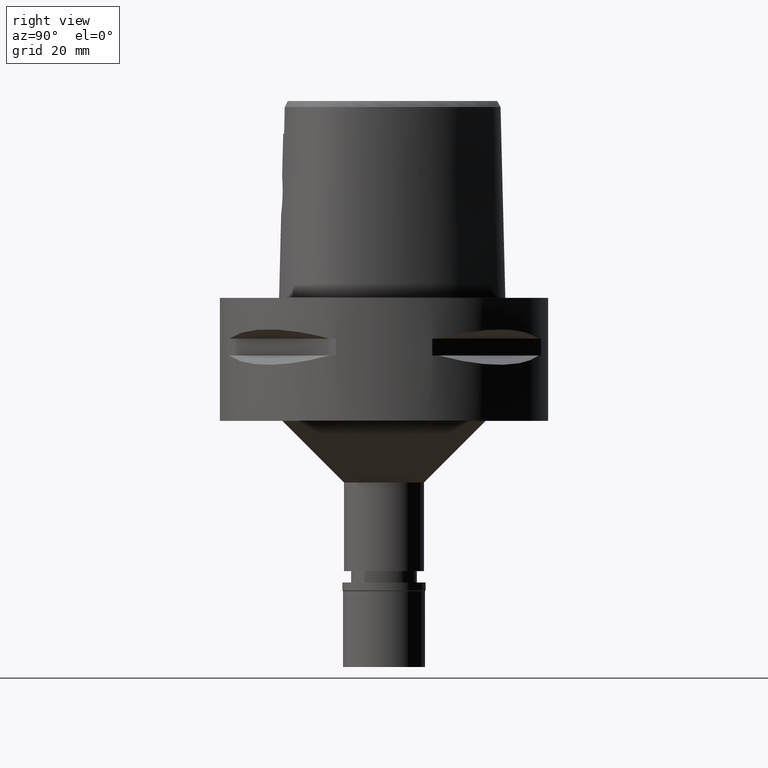
[diagram: clean part render]
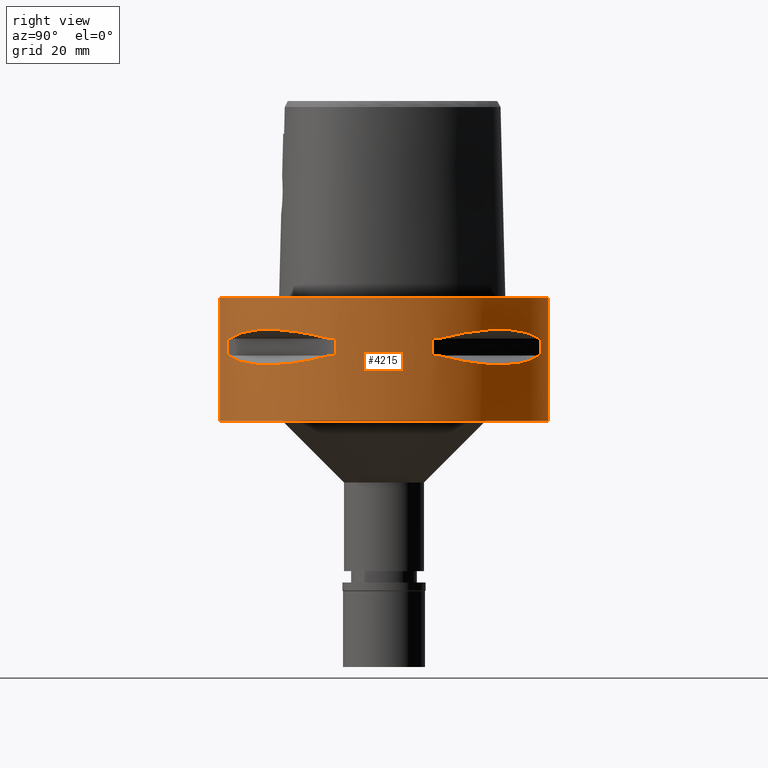
[diagram: same view with one face highlighted and labeled with its STEP entity id]
A machine part, right view. The second image highlights one B-rep face of the part: STEP entity #4215.
In plain terms, the highlighted cylindrical surface (partial cylindrical patch) has radius 40 mm, axis along (0, 0, -1).
Its self-contained STEP definition (entity closure, byte-faithful):
#11 = CARTESIAN_POINT ( 'NONE',  ( 21.40429668490248005, -33.79139713908606524, -15.76966389594713647 ) ) ;
#36 = CARTESIAN_POINT ( 'NONE',  ( 13.23717311056000057, -37.74622163926999718, -14.05000000000000071 ) ) ;
#41 = CARTESIAN_POINT ( 'NONE',  ( 22.02254759438460141, 33.39247868354773630, -15.85920599531294783 ) ) ;
#48 = ORIENTED_EDGE ( 'NONE', *, *, #3011, .T. ) ;
#54 = B_SPLINE_CURVE_WITH_KNOTS ( 'NONE', 3,
 ( #1267, #1575, #4712, #2826, #879, #480, #2061, #3628, #3243, #2851 ),
 .UNSPECIFIED., .F., .F.,
 ( 4, 2, 2, 2, 4 ),
 ( 0.0000000000000000000, 0.2500000000000000000, 0.5000000000000000000, 0.7500000000000000000, 1.000000000000000000 ),
 .UNSPECIFIED. ) ;
#59 = DIRECTION ( 'NONE',  ( 0.0000000000000000000, 0.0000000000000000000, 1.000000000000000000 ) ) ;
#61 = CARTESIAN_POINT ( 'NONE',  ( 23.95303639238279914, -32.16767032370825063, -16.14729882780506287 ) ) ;
#104 = DIRECTION ( 'NONE',  ( 0.0000000000000000000, 0.0000000000000000000, -1.000000000000000000 ) ) ;
#108 = EDGE_CURVE ( 'NONE', #1826, #2446, #1118, .T. ) ;
#152 = VERTEX_POINT ( 'NONE', #4677 ) ;
#172 = EDGE_CURVE ( 'NONE', #3135, #2698, #1670, .T. ) ;
#192 = CARTESIAN_POINT ( 'NONE',  ( 32.30995221950663421, -23.60097336453835837, -16.06165603927566821 ) ) ;
#247 = CIRCLE ( 'NONE', #4455, 39.99999999999999289 ) ;
#291 = ORIENTED_EDGE ( 'NONE', *, *, #108, .T. ) ;
#307 = EDGE_CURVE ( 'NONE', #3135, #3215, #2829, .T. ) ;
#338 = CARTESIAN_POINT ( 'NONE',  ( 27.25214773984120598, 29.31642813391417590, -16.33014064577303515 ) ) ;
#341 = CARTESIAN_POINT ( 'NONE',  ( 30.36058330523851367, 26.20795918968530813, -7.669882118585187314 ) ) ;
#353 = ORIENTED_EDGE ( 'NONE', *, *, #4469, .F. ) ;
#367 = CARTESIAN_POINT ( 'NONE',  ( 30.34851826270024944, 26.21995747455423853, -16.33009976521772799 ) ) ;
#396 = VERTEX_POINT ( 'NONE', #615 ) ;
#424 = VECTOR ( 'NONE', #4402, 1000.000000000000000 ) ;
#433 = VECTOR ( 'NONE', #3194, 1000.000000000000000 ) ;
#436 = AXIS2_PLACEMENT_3D ( 'NONE', #5017, #1521, #1107 ) ;
#448 = CARTESIAN_POINT ( 'NONE',  ( 33.79139713908593023, 21.40429668490282467, -15.76966389594722528 ) ) ;
#467 = CARTESIAN_POINT ( 'NONE',  ( 0.0000000000000000000, -40.00000000000000000, -30.00000000000000000 ) ) ;
#469 = CARTESIAN_POINT ( 'NONE',  ( 11.76033600280999991, 38.23211342708000160, -14.05000000000000071 ) ) ;
#480 = CARTESIAN_POINT ( 'NONE',  ( 30.36058330527161075, -26.20795918965218618, -7.669863843587148011 ) ) ;
#578 = AXIS2_PLACEMENT_3D ( 'NONE', #1173, #2729, #4301 ) ;
#589 = CARTESIAN_POINT ( 'NONE',  ( 33.03835700909839090, -22.55421454657001235, -15.93168855142863904 ) ) ;
#615 = CARTESIAN_POINT ( 'NONE',  ( 13.23717311056000057, -37.74622163926999718, -9.950000000002001244 ) ) ;
#635 = VERTEX_POINT ( 'NONE', #3527 ) ;
#657 = LINE ( 'NONE', #2721, #5036 ) ;
#735 = CARTESIAN_POINT ( 'NONE',  ( 21.56243030661663695, 33.69065616467183588, -15.79309434609252705 ) ) ;
#764 = CARTESIAN_POINT ( 'NONE',  ( 36.35358138589326416, 16.81132763100200123, -14.94059947015123058 ) ) ;
#768 = CARTESIAN_POINT ( 'NONE',  ( 35.41596287858687475, 18.83173199168491507, -8.619939612229350345 ) ) ;
#792 = CARTESIAN_POINT ( 'NONE',  ( 21.62017158009700069, 33.65365962422837498, -15.80156334789098160 ) ) ;
#842 = CARTESIAN_POINT ( 'NONE',  ( 22.55421454656803704, 33.03835700910301654, -15.93168855142971374 ) ) ;
#864 = EDGE_CURVE ( 'NONE', #1499, #2147, #1505, .T. ) ;
#879 = CARTESIAN_POINT ( 'NONE',  ( 26.20795918965211158, -30.36058330527167115, -7.669882118573493557 ) ) ;
#939 = AXIS2_PLACEMENT_3D ( 'NONE', #5024, #2672, #3395 ) ;
#955 = EDGE_CURVE ( 'NONE', #1552, #3215, #2810, .T. ) ;
#988 = CARTESIAN_POINT ( 'NONE',  ( 33.72697758561029246, -21.50560509406250276, -15.78472370821739901 ) ) ;
#990 = DIRECTION ( 'NONE',  ( 0.0000000000000000000, 0.0000000000000000000, -1.000000000000000000 ) ) ;
#1004 = ORIENTED_EDGE ( 'NONE', *, *, #1585, .F. ) ;
#1016 = DIRECTION ( 'NONE',  ( 0.0000000000000000000, -1.000000000000000000, 0.0000000000000000000 ) ) ;
#1029 = VERTEX_POINT ( 'NONE', #1652 ) ;
#1050 = ORIENTED_EDGE ( 'NONE', *, *, #1716, .F. ) ;
#1065 = B_SPLINE_CURVE_WITH_KNOTS ( 'NONE', 3,
 ( #4365, #5119, #764, #2335, #2407, #2744, #3518, #3911, #448, #2380, #1594, #4730, #367, #338, #4313, #2302, #842, #41, #3990, #792, #735, #3205, #1210, #1945, #2768, #1568 ),
 .UNSPECIFIED., .F., .F.,
 ( 4, 1, 1, 1, 1, 1, 1, 2, 2, 2, 1, 1, 1, 1, 1, 1, 2, 2, 4 ),
 ( 0.0000000000000000000, 0.1249999999999938660, 0.1874999999999906741, 0.2187499999999889255, 0.2343749999999879541, 0.2421874999999872879, 0.2460937499999869549, 0.2480468749999869271, 0.2499999999999869271, 0.4999999999999968914, 0.6250000000000018874, 0.6875000000000044409, 0.7187500000000057732, 0.7343750000000064393, 0.7421875000000067724, 0.7460937500000065503, 0.7480468750000062172, 0.7500000000000058842, 1.000000000000000000 ),
 .UNSPECIFIED. ) ;
#1107 = DIRECTION ( 'NONE',  ( 0.2940084000702865574, -0.9558028356769561196, 0.0000000000000000000 ) ) ;
#1118 = B_SPLINE_CURVE_WITH_KNOTS ( 'NONE', 3,
 ( #3022, #1948, #768, #4315, #341, #4205, #1894, #3462, #4651, #2282 ),
 .UNSPECIFIED., .F., .F.,
 ( 4, 2, 2, 2, 4 ),
 ( 0.0000000000000000000, 0.2499999999999997780, 0.4999999999999995559, 0.7499999999999997780, 1.000000000000000000 ),
 .UNSPECIFIED. ) ;
#1168 = DIRECTION ( 'NONE',  ( 0.9558028356769561196, 0.2940084000702865574, 0.0000000000000000000 ) ) ;
#1172 = CARTESIAN_POINT ( 'NONE',  ( 0.0000000000000000000, 40.00000000000000000, -30.00000000000000000 ) ) ;
#1173 = CARTESIAN_POINT ( 'NONE',  ( 0.0000000000000000000, 1.274857317911999787E-14, -9.950000000000001066 ) ) ;
#1210 = CARTESIAN_POINT ( 'NONE',  ( 21.50560509406274434, 33.72697758561020720, -15.78472370821746118 ) ) ;
#1267 = CARTESIAN_POINT ( 'NONE',  ( 13.23717311056000057, -37.74622163926999718, -9.950000000002001244 ) ) ;
#1271 = CIRCLE ( 'NONE', #436, 39.99999999999999289 ) ;
#1273 = AXIS2_PLACEMENT_3D ( 'NONE', #2781, #3585, #3631 ) ;
#1280 = ORIENTED_EDGE ( 'NONE', *, *, #3424, .T. ) ;
#1284 = CARTESIAN_POINT ( 'NONE',  ( 30.77249687753092289, -25.62819065487347814, -16.26160051742767365 ) ) ;
#1289 = CARTESIAN_POINT ( 'NONE',  ( 0.0000000000000000000, 1.274857317911999787E-14, -14.05000000000000071 ) ) ;
#1297 = ORIENTED_EDGE ( 'NONE', *, *, #3844, .T. ) ;
#1303 = CARTESIAN_POINT ( 'NONE',  ( 11.76033600280999991, 38.23211342708000160, -14.05000000000000071 ) ) ;
#1304 = VERTEX_POINT ( 'NONE', #1303 ) ;
#1317 = DIRECTION ( 'NONE',  ( 0.0000000000000000000, 1.000000000000000000, 0.0000000000000000000 ) ) ;
#1323 = DIRECTION ( 'NONE',  ( 0.0000000000000000000, 0.0000000000000000000, -1.000000000000000000 ) ) ;
#1339 = CIRCLE ( 'NONE', #3140, 39.99999999999997868 ) ;
#1340 = AXIS2_PLACEMENT_3D ( 'NONE', #2139, #3349, #1016 ) ;
#1398 = CARTESIAN_POINT ( 'NONE',  ( 37.74622163926999718, -13.23717311056000057, -14.05000000000000071 ) ) ;
#1420 = VECTOR ( 'NONE', #1323, 1000.000000000000000 ) ;
#1468 = CARTESIAN_POINT ( 'NONE',  ( 0.0000000000000000000, 1.274857317911999787E-14, -9.950000000000001066 ) ) ;
#1499 = VERTEX_POINT ( 'NONE', #467 ) ;
#1505 = CIRCLE ( 'NONE', #1340, 40.00000000000000000 ) ;
#1521 = DIRECTION ( 'NONE',  ( 0.0000000000000000000, 0.0000000000000000000, 1.000000000000000000 ) ) ;
#1550 = ORIENTED_EDGE ( 'NONE', *, *, #2172, .T. ) ;
#1551 = DIRECTION ( 'NONE',  ( 0.0000000000000000000, 0.0000000000000000000, -1.000000000000000000 ) ) ;
#1552 = VERTEX_POINT ( 'NONE', #1614 ) ;
#1568 = CARTESIAN_POINT ( 'NONE',  ( 13.23717311056000057, 37.74622163926999718, -14.05000000000000071 ) ) ;
#1575 = CARTESIAN_POINT ( 'NONE',  ( 16.10435486228985980, -36.74073341982089147, -9.189966798081966814 ) ) ;
#1585 = EDGE_CURVE ( 'NONE', #1552, #3468, #2930, .T. ) ;
#1594 = CARTESIAN_POINT ( 'NONE',  ( 33.75216276490046852, 21.46607685731544990, -15.77886817953061005 ) ) ;
#1614 = CARTESIAN_POINT ( 'NONE',  ( 38.23211342708000160, -11.76033600280999991, -14.05000000000000071 ) ) ;
#1635 = CARTESIAN_POINT ( 'NONE',  ( 11.76033600280999991, -38.23211342708000160, -9.950000000000001066 ) ) ;
#1647 = CARTESIAN_POINT ( 'NONE',  ( 11.76033600280999991, -38.23211342708000160, -14.05000000000000071 ) ) ;
#1652 = CARTESIAN_POINT ( 'NONE',  ( 13.23717311056000057, 37.74622163926999718, -14.05000000000000071 ) ) ;
#1668 = CARTESIAN_POINT ( 'NONE',  ( 26.21995747456629644, -30.34851826269509800, -16.33009976522055240 ) ) ;
#1670 = CIRCLE ( 'NONE', #4525, 39.99999999999997868 ) ;
#1682 = CARTESIAN_POINT ( 'NONE',  ( 11.76033600280999991, -38.23211342708000160, -9.950000000000001066 ) ) ;
#1716 = EDGE_CURVE ( 'NONE', #635, #2943, #2187, .T. ) ;
#1742 = DIRECTION ( 'NONE',  ( 0.9436555409818374596, -0.3309293277639132058, 0.0000000000000000000 ) ) ;
#1809 = DIRECTION ( 'NONE',  ( 0.9558028356769561196, -0.2940084000702865574, 0.0000000000000000000 ) ) ;
#1826 = VERTEX_POINT ( 'NONE', #4246 ) ;
#1894 = CARTESIAN_POINT ( 'NONE',  ( 23.88364259926272481, 32.22570670466008380, -7.859869859733156439 ) ) ;
#1945 = CARTESIAN_POINT ( 'NONE',  ( 18.89342208871625317, 35.39137327286631063, -15.39779115588368619 ) ) ;
#1948 = CARTESIAN_POINT ( 'NONE',  ( 36.74073341983645236, 16.10435486224558943, -9.189966798093662348 ) ) ;
#2002 = AXIS2_PLACEMENT_3D ( 'NONE', #4981, #4151, #2196 ) ;
#2022 = EDGE_CURVE ( 'NONE', #1304, #1029, #4300, .T. ) ;
#2052 = CARTESIAN_POINT ( 'NONE',  ( 21.34345216682037716, -33.82993376593525170, -15.76055673748744468 ) ) ;
#2055 = DIRECTION ( 'NONE',  ( 0.0000000000000000000, 0.0000000000000000000, 1.000000000000000000 ) ) ;
#2061 = CARTESIAN_POINT ( 'NONE',  ( 32.22570670470193477, -23.88364259920623667, -7.859869859750701515 ) ) ;
#2084 = ORIENTED_EDGE ( 'NONE', *, *, #3808, .F. ) ;
#2096 = CARTESIAN_POINT ( 'NONE',  ( 33.65365962422774260, -21.62017158009728135, -15.80156334789082528 ) ) ;
#2110 = EDGE_CURVE ( 'NONE', #3919, #2147, #2726, .T. ) ;
#2139 = CARTESIAN_POINT ( 'NONE',  ( 0.0000000000000000000, 1.274857317911999787E-14, -30.00000000000000000 ) ) ;
#2147 = VERTEX_POINT ( 'NONE', #1172 ) ;
#2162 = DIRECTION ( 'NONE',  ( 0.0000000000000000000, 0.0000000000000000000, 1.000000000000000000 ) ) ;
#2172 = EDGE_CURVE ( 'NONE', #3165, #2943, #5047, .T. ) ;
#2179 = ORIENTED_EDGE ( 'NONE', *, *, #2110, .F. ) ;
#2187 = LINE ( 'NONE', #3344, #1420 ) ;
#2192 = CARTESIAN_POINT ( 'NONE',  ( 33.39247868354526361, -22.02254759438564591, -15.85920599531236164 ) ) ;
#2196 = DIRECTION ( 'NONE',  ( 0.0000000000000000000, -1.000000000000000000, 0.0000000000000000000 ) ) ;
#2202 = VERTEX_POINT ( 'NONE', #1635 ) ;
#2282 = CARTESIAN_POINT ( 'NONE',  ( 13.23717311056000057, 37.74622163926999718, -9.950000000002001244 ) ) ;
#2302 = CARTESIAN_POINT ( 'NONE',  ( 23.60097336453497618, 32.30995221951452834, -16.06165603927751917 ) ) ;
#2313 = EDGE_LOOP ( 'NONE', ( #4267, #353, #4235, #4967, #1550, #1050, #2681, #291 ) ) ;
#2323 = VECTOR ( 'NONE', #2162, 1000.000000000000000 ) ;
#2335 = CARTESIAN_POINT ( 'NONE',  ( 35.11589783530617126, 19.18269457493275354, -15.40342377741110091 ) ) ;
#2363 = DIRECTION ( 'NONE',  ( 0.0000000000000000000, 0.0000000000000000000, -1.000000000000000000 ) ) ;
#2380 = CARTESIAN_POINT ( 'NONE',  ( 33.76566745675005166, 21.44484052678287256, -15.77571175125579828 ) ) ;
#2407 = CARTESIAN_POINT ( 'NONE',  ( 34.44518065740276569, 20.34261333234974245, -15.60313948593977074 ) ) ;
#2428 = LINE ( 'NONE', #469, #4461 ) ;
#2446 = VERTEX_POINT ( 'NONE', #3498 ) ;
#2576 = CARTESIAN_POINT ( 'NONE',  ( 36.72682052669194519, -16.14402792113480345, -14.82054974553614635 ) ) ;
#2656 = FACE_BOUND ( 'NONE', #2313, .T. ) ;
#2667 = CARTESIAN_POINT ( 'NONE',  ( 38.23211342708000160, -11.76033600280999991, -9.950000000000001066 ) ) ;
#2672 = DIRECTION ( 'NONE',  ( 0.0000000000000000000, 0.0000000000000000000, -1.000000000000000000 ) ) ;
#2681 = ORIENTED_EDGE ( 'NONE', *, *, #3562, .T. ) ;
#2698 = VERTEX_POINT ( 'NONE', #1647 ) ;
#2721 = CARTESIAN_POINT ( 'NONE',  ( 0.0000000000000000000, -40.00000000000000000, 0.0000000000000000000 ) ) ;
#2726 = LINE ( 'NONE', #4325, #433 ) ;
#2729 = DIRECTION ( 'NONE',  ( 0.0000000000000000000, 0.0000000000000000000, 1.000000000000000000 ) ) ;
#2744 = CARTESIAN_POINT ( 'NONE',  ( 34.09685321779860345, 20.91613153242115075, -15.69507322892878953 ) ) ;
#2766 = CARTESIAN_POINT ( 'NONE',  ( 19.18269457492549179, -35.11589783530871500, -15.40342377740917001 ) ) ;
#2768 = CARTESIAN_POINT ( 'NONE',  ( 16.14402792110260521, 36.72682052670324993, -14.82054974552761095 ) ) ;
#2775 = EDGE_CURVE ( 'NONE', #3165, #1029, #1065, .T. ) ;
#2781 = CARTESIAN_POINT ( 'NONE',  ( 0.0000000000000000000, 1.274857317911999787E-14, -14.05000000000000071 ) ) ;
#2810 = CIRCLE ( 'NONE', #4289, 39.99999999999999289 ) ;
#2825 = AXIS2_PLACEMENT_3D ( 'NONE', #4045, #104, #1317 ) ;
#2826 = CARTESIAN_POINT ( 'NONE',  ( 23.88355431037091137, -32.22577213857957901, -7.859897272571251037 ) ) ;
#2829 = B_SPLINE_CURVE_WITH_KNOTS ( 'NONE', 3,
 ( #3123, #4337, #4697, #2766, #3231, #4013, #3570, #2052, #11, #4753, #3618, #61, #1668, #4805, #1284, #192, #589, #2192, #3323, #2096, #3296, #4485, #988, #4897, #2576, #1398 ),
 .UNSPECIFIED., .F., .F.,
 ( 4, 1, 1, 1, 1, 1, 1, 2, 2, 2, 1, 1, 1, 1, 1, 1, 2, 2, 4 ),
 ( 0.0000000000000000000, 0.1250000000000018319, 0.1875000000000027478, 0.2187500000000032196, 0.2343750000000035805, 0.2421875000000038025, 0.2460937500000040523, 0.2480468750000043576, 0.2500000000000046629, 0.5000000000000000000, 0.6249999999999975575, 0.6874999999999964473, 0.7187499999999961142, 0.7343749999999960032, 0.7421874999999960032, 0.7460937499999957812, 0.7480468749999958922, 0.7499999999999958922, 1.000000000000000000 ),
 .UNSPECIFIED. ) ;
#2847 = CARTESIAN_POINT ( 'NONE',  ( 0.0000000000000000000, 1.274857317911999787E-14, -14.05000000000000071 ) ) ;
#2851 = CARTESIAN_POINT ( 'NONE',  ( 37.74622163926999718, -13.23717311056000057, -9.950000000002001244 ) ) ;
#2899 = CARTESIAN_POINT ( 'NONE',  ( 11.76033600280999991, 38.23211342708000160, -9.950000000000001066 ) ) ;
#2930 = LINE ( 'NONE', #3293, #2323 ) ;
#2942 = CARTESIAN_POINT ( 'NONE',  ( 0.0000000000000000000, 40.00000000000000000, 0.0000000000000000000 ) ) ;
#2943 = VERTEX_POINT ( 'NONE', #4419 ) ;
#3011 = EDGE_CURVE ( 'NONE', #3286, #3468, #1339, .T. ) ;
#3022 = CARTESIAN_POINT ( 'NONE',  ( 37.74622163926999718, 13.23717311056000057, -9.950000000002001244 ) ) ;
#3028 = DIRECTION ( 'NONE',  ( 0.0000000000000000000, 0.0000000000000000000, 1.000000000000000000 ) ) ;
#3086 = ORIENTED_EDGE ( 'NONE', *, *, #955, .T. ) ;
#3096 = EDGE_LOOP ( 'NONE', ( #3700, #1280, #4931, #2179 ) ) ;
#3123 = CARTESIAN_POINT ( 'NONE',  ( 13.23717311056000057, -37.74622163926999718, -14.05000000000000071 ) ) ;
#3135 = VERTEX_POINT ( 'NONE', #36 ) ;
#3140 = AXIS2_PLACEMENT_3D ( 'NONE', #4462, #2055, #1742 ) ;
#3165 = VERTEX_POINT ( 'NONE', #4076 ) ;
#3194 = DIRECTION ( 'NONE',  ( 0.0000000000000000000, 0.0000000000000000000, -1.000000000000000000 ) ) ;
#3205 = CARTESIAN_POINT ( 'NONE',  ( 21.52391145898924663, 33.71529052282357952, -15.78742602700012831 ) ) ;
#3215 = VERTEX_POINT ( 'NONE', #4527 ) ;
#3231 = CARTESIAN_POINT ( 'NONE',  ( 20.34261333234551472, -34.44518065740425783, -15.60313948593864275 ) ) ;
#3243 = CARTESIAN_POINT ( 'NONE',  ( 36.74070924257181758, -16.10442380448734312, -9.189948522868267133 ) ) ;
#3277 = EDGE_CURVE ( 'NONE', #2446, #4086, #3883, .T. ) ;
#3286 = VERTEX_POINT ( 'NONE', #3531 ) ;
#3293 = CARTESIAN_POINT ( 'NONE',  ( 38.23211342708000160, -11.76033600280999991, -14.05000000000000071 ) ) ;
#3296 = CARTESIAN_POINT ( 'NONE',  ( 33.69065616467145929, -21.56243030661679327, -15.79309434609244001 ) ) ;
#3323 = CARTESIAN_POINT ( 'NONE',  ( 33.56701934068144766, -21.75464223249341345, -15.82109001420603533 ) ) ;
#3344 = CARTESIAN_POINT ( 'NONE',  ( 38.23211342708000160, 11.76033600280999991, -9.950000000000001066 ) ) ;
#3349 = DIRECTION ( 'NONE',  ( 0.0000000000000000000, 0.0000000000000000000, 1.000000000000000000 ) ) ;
#3395 = DIRECTION ( 'NONE',  ( 0.2940084000702865574, 0.9558028356769561196, 0.0000000000000000000 ) ) ;
#3406 = CYLINDRICAL_SURFACE ( 'NONE', #2002, 40.00000000000000000 ) ;
#3424 = EDGE_CURVE ( 'NONE', #152, #1499, #657, .T. ) ;
#3432 = FACE_OUTER_BOUND ( 'NONE', #3096, .T. ) ;
#3462 = CARTESIAN_POINT ( 'NONE',  ( 18.83182902082666743, 35.41591128510520292, -8.619912199373716888 ) ) ;
#3468 = VERTEX_POINT ( 'NONE', #2667 ) ;
#3498 = CARTESIAN_POINT ( 'NONE',  ( 13.23717311056000057, 37.74622163926999718, -9.950000000002001244 ) ) ;
#3518 = CARTESIAN_POINT ( 'NONE',  ( 33.91944728533341191, 21.20128033779756294, -15.73905907260447101 ) ) ;
#3525 = LINE ( 'NONE', #1682, #424 ) ;
#3527 = CARTESIAN_POINT ( 'NONE',  ( 38.23211342708000160, 11.76033600280999991, -9.950000000000001066 ) ) ;
#3528 = ORIENTED_EDGE ( 'NONE', *, *, #307, .F. ) ;
#3531 = CARTESIAN_POINT ( 'NONE',  ( 37.74622163926999718, -13.23717311056000057, -9.950000000002001244 ) ) ;
#3562 = EDGE_CURVE ( 'NONE', #635, #1826, #247, .T. ) ;
#3570 = CARTESIAN_POINT ( 'NONE',  ( 21.20128033779640830, -33.91944728533381692, -15.73905907260415837 ) ) ;
#3585 = DIRECTION ( 'NONE',  ( 0.0000000000000000000, 0.0000000000000000000, -1.000000000000000000 ) ) ;
#3618 = CARTESIAN_POINT ( 'NONE',  ( 21.46607685731536819, -33.75216276490051825, -15.77886817953059051 ) ) ;
#3628 = CARTESIAN_POINT ( 'NONE',  ( 35.41591128513823605, -18.83182902076454468, -8.619912199391258412 ) ) ;
#3629 = ORIENTED_EDGE ( 'NONE', *, *, #4975, .T. ) ;
#3631 = DIRECTION ( 'NONE',  ( 0.9436555409818374596, 0.3309293277639132058, 0.0000000000000000000 ) ) ;
#3700 = ORIENTED_EDGE ( 'NONE', *, *, #4910, .T. ) ;
#3756 = ORIENTED_EDGE ( 'NONE', *, *, #172, .T. ) ;
#3808 = EDGE_CURVE ( 'NONE', #2202, #2698, #3525, .T. ) ;
#3844 = EDGE_CURVE ( 'NONE', #396, #3286, #54, .T. ) ;
#3883 = CIRCLE ( 'NONE', #578, 39.99999999999997868 ) ;
#3911 = CARTESIAN_POINT ( 'NONE',  ( 33.82993376593505275, 21.34345216682098112, -15.76055673748761166 ) ) ;
#3919 = VERTEX_POINT ( 'NONE', #2942 ) ;
#3944 = EDGE_LOOP ( 'NONE', ( #48, #1004, #3086, #3528, #3756, #2084, #3629, #1297 ) ) ;
#3990 = CARTESIAN_POINT ( 'NONE',  ( 21.75464223249287699, 33.56701934068274795, -15.82109001420633732 ) ) ;
#4013 = CARTESIAN_POINT ( 'NONE',  ( 20.91613153241887701, -34.09685321779939926, -15.69507322892818557 ) ) ;
#4018 = DIRECTION ( 'NONE',  ( 0.3309293277639132058, -0.9436555409818374596, 0.0000000000000000000 ) ) ;
#4045 = CARTESIAN_POINT ( 'NONE',  ( 0.0000000000000000000, 1.274857317911999787E-14, 0.0000000000000000000 ) ) ;
#4076 = CARTESIAN_POINT ( 'NONE',  ( 37.74622163926999718, 13.23717311056000057, -14.05000000000000071 ) ) ;
#4086 = VERTEX_POINT ( 'NONE', #2899 ) ;
#4151 = DIRECTION ( 'NONE',  ( 0.0000000000000000000, 0.0000000000000000000, -1.000000000000000000 ) ) ;
#4205 = CARTESIAN_POINT ( 'NONE',  ( 26.20795918968520866, 30.36058330523860960, -7.669863843575451590 ) ) ;
#4215 = ADVANCED_FACE ( 'NONE', ( #3432, #4256, #2656 ), #3406, .T. ) ;
#4235 = ORIENTED_EDGE ( 'NONE', *, *, #2022, .T. ) ;
#4246 = CARTESIAN_POINT ( 'NONE',  ( 37.74622163926999718, 13.23717311056000057, -9.950000000002001244 ) ) ;
#4256 = FACE_BOUND ( 'NONE', #3944, .T. ) ;
#4267 = ORIENTED_EDGE ( 'NONE', *, *, #3277, .T. ) ;
#4289 = AXIS2_PLACEMENT_3D ( 'NONE', #2847, #990, #1809 ) ;
#4300 = CIRCLE ( 'NONE', #939, 39.99999999999999289 ) ;
#4301 = DIRECTION ( 'NONE',  ( 0.3309293277639132058, 0.9436555409818374596, 0.0000000000000000000 ) ) ;
#4313 = CARTESIAN_POINT ( 'NONE',  ( 25.62819065486898396, 30.77249687754148866, -16.26160051743016055 ) ) ;
#4315 = CARTESIAN_POINT ( 'NONE',  ( 32.22577213862145840, 23.88355431031446230, -7.859897272588790784 ) ) ;
#4325 = CARTESIAN_POINT ( 'NONE',  ( 0.0000000000000000000, 40.00000000000000000, 0.0000000000000000000 ) ) ;
#4337 = CARTESIAN_POINT ( 'NONE',  ( 14.69039122917563844, -37.23659447745037454, -14.43521939500837981 ) ) ;
#4365 = CARTESIAN_POINT ( 'NONE',  ( 37.74622163926999718, 13.23717311056000057, -14.05000000000000071 ) ) ;
#4402 = DIRECTION ( 'NONE',  ( 0.0000000000000000000, 0.0000000000000000000, -1.000000000000000000 ) ) ;
#4419 = CARTESIAN_POINT ( 'NONE',  ( 38.23211342708000160, 11.76033600280999991, -14.05000000000000071 ) ) ;
#4455 = AXIS2_PLACEMENT_3D ( 'NONE', #1468, #3028, #1168 ) ;
#4461 = VECTOR ( 'NONE', #59, 1000.000000000000000 ) ;
#4462 = CARTESIAN_POINT ( 'NONE',  ( 0.0000000000000000000, 1.274857317911999787E-14, -9.950000000000001066 ) ) ;
#4469 = EDGE_CURVE ( 'NONE', #1304, #4086, #2428, .T. ) ;
#4485 = CARTESIAN_POINT ( 'NONE',  ( 33.71529052282339478, -21.52391145898932834, -15.78742602700008568 ) ) ;
#4525 = AXIS2_PLACEMENT_3D ( 'NONE', #1289, #2363, #4018 ) ;
#4527 = CARTESIAN_POINT ( 'NONE',  ( 37.74622163926999718, -13.23717311056000057, -14.05000000000000071 ) ) ;
#4651 = CARTESIAN_POINT ( 'NONE',  ( 16.10442380453151401, 36.74070924255632775, -9.189948522856569824 ) ) ;
#4677 = CARTESIAN_POINT ( 'NONE',  ( 0.0000000000000000000, -40.00000000000000000, 0.0000000000000000000 ) ) ;
#4697 = CARTESIAN_POINT ( 'NONE',  ( 16.81132763099230587, -36.35358138589664634, -14.94059947014864775 ) ) ;
#4712 = CARTESIAN_POINT ( 'NONE',  ( 18.83173199174709467, -35.41596287855377767, -8.619939612211814151 ) ) ;
#4730 = CARTESIAN_POINT ( 'NONE',  ( 32.16767032371209467, 23.95303639237203797, -16.14729882780224202 ) ) ;
#4753 = CARTESIAN_POINT ( 'NONE',  ( 21.44484052678270913, -33.76566745675011560, -15.77571175125575031 ) ) ;
#4800 = CIRCLE ( 'NONE', #2825, 40.00000000000000000 ) ;
#4805 = CARTESIAN_POINT ( 'NONE',  ( 29.31642813390815050, -27.25214773984377459, -16.33014064577162472 ) ) ;
#4897 = CARTESIAN_POINT ( 'NONE',  ( 35.39137327285502010, -18.89342208874845142, -15.39779115589221625 ) ) ;
#4910 = EDGE_CURVE ( 'NONE', #3919, #152, #4800, .T. ) ;
#4931 = ORIENTED_EDGE ( 'NONE', *, *, #864, .T. ) ;
#4967 = ORIENTED_EDGE ( 'NONE', *, *, #2775, .F. ) ;
#4975 = EDGE_CURVE ( 'NONE', #2202, #396, #1271, .T. ) ;
#4981 = CARTESIAN_POINT ( 'NONE',  ( 0.0000000000000000000, 1.274857317911999787E-14, 4.100000000000000533 ) ) ;
#5017 = CARTESIAN_POINT ( 'NONE',  ( 0.0000000000000000000, 1.274857317911999787E-14, -9.950000000000001066 ) ) ;
#5024 = CARTESIAN_POINT ( 'NONE',  ( 0.0000000000000000000, 1.274857317911999787E-14, -14.05000000000000071 ) ) ;
#5036 = VECTOR ( 'NONE', #1551, 1000.000000000000000 ) ;
#5047 = CIRCLE ( 'NONE', #1273, 39.99999999999997868 ) ;
#5119 = CARTESIAN_POINT ( 'NONE',  ( 37.23659447744844897, 14.69039122918117357, -14.43521939500984885 ) ) ;